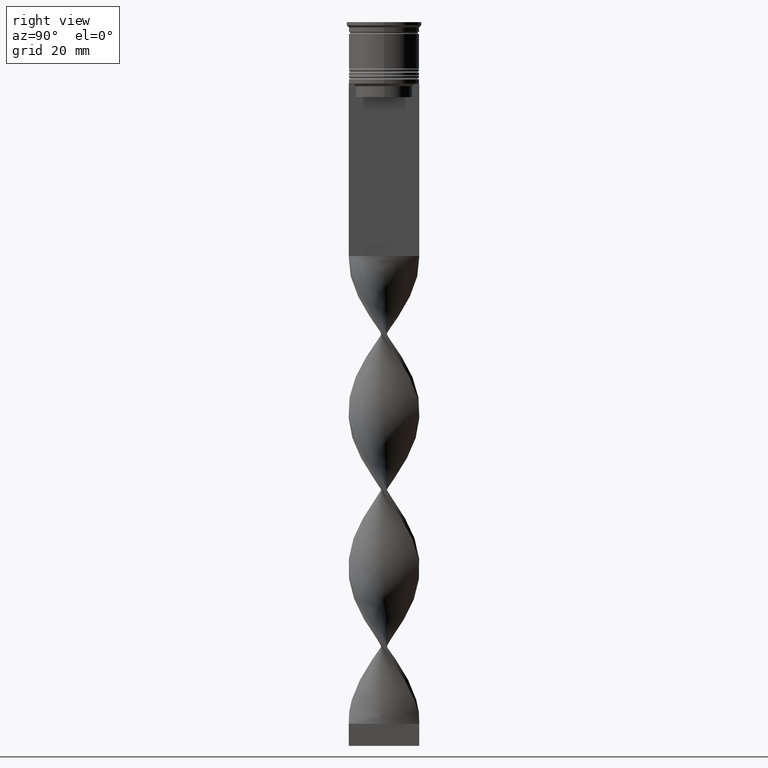
[diagram: clean part render]
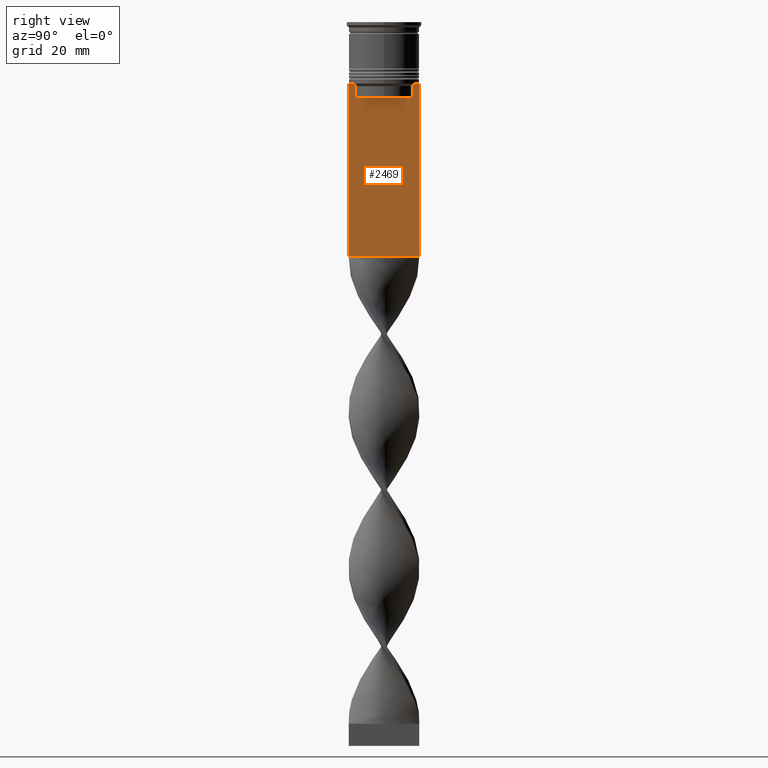
[diagram: same view with one face highlighted and labeled with its STEP entity id]
A machine part, right view. The second image highlights one B-rep face of the part: STEP entity #2469.
In plain terms, the highlighted planar face has unit normal (-1, 0, 0).
Its self-contained STEP definition (entity closure, byte-faithful):
#8 = VECTOR ( 'NONE', #3688, 1000.000000000000000 ) ;
#19 = CARTESIAN_POINT ( 'NONE',  ( 0.5000000000000001110, -6.380438856379708312, 0.000000000000000000 ) ) ;
#35 = DIRECTION ( 'NONE',  ( -0.000000000000000000, -0.000000000000000000, 1.000000000000000000 ) ) ;
#51 = LINE ( 'NONE', #19, #1778 ) ;
#81 = DIRECTION ( 'NONE',  ( 0.000000000000000000, 0.000000000000000000, -1.000000000000000000 ) ) ;
#95 = CARTESIAN_POINT ( 'NONE',  ( 0.5000000000000001110, 6.881860213634098500, -14.00000000000000178 ) ) ;
#165 = VERTEX_POINT ( 'NONE', #2561 ) ;
#213 = VERTEX_POINT ( 'NONE', #2616 ) ;
#249 = VECTOR ( 'NONE', #2120, 1000.000000000000000 ) ;
#254 = CARTESIAN_POINT ( 'NONE',  ( 0.5000000000000001110, -8.000000000000003553, -14.00000000000000178 ) ) ;
#255 = VERTEX_POINT ( 'NONE', #1809 ) ;
#282 = DIRECTION ( 'NONE',  ( 0.000000000000000000, -1.000000000000000000, 0.000000000000000000 ) ) ;
#300 = ORIENTED_EDGE ( 'NONE', *, *, #3386, .T. ) ;
#319 = AXIS2_PLACEMENT_3D ( 'NONE', #1945, #3411, #3087 ) ;
#363 = CARTESIAN_POINT ( 'NONE',  ( 0.5000000000000001110, 6.380438856379708312, 0.000000000000000000 ) ) ;
#388 = CARTESIAN_POINT ( 'NONE',  ( 0.5000000000000001110, 6.380438856379708312, -17.00000000000000000 ) ) ;
#403 = VERTEX_POINT ( 'NONE', #3066 ) ;
#413 = CARTESIAN_POINT ( 'NONE',  ( 0.5000000000000001110, -8.000000000000003553, -14.00000000000000178 ) ) ;
#459 = VERTEX_POINT ( 'NONE', #388 ) ;
#533 = EDGE_CURVE ( 'NONE', #459, #403, #2735, .T. ) ;
#573 = CARTESIAN_POINT ( 'NONE',  ( 0.5000000000000001110, 6.714736947114692711, -14.16668390704818847 ) ) ;
#584 = VERTEX_POINT ( 'NONE', #1043 ) ;
#617 = VECTOR ( 'NONE', #282, 1000.000000000000000 ) ;
#764 = LINE ( 'NONE', #1947, #8 ) ;
#780 = CARTESIAN_POINT ( 'NONE',  ( 0.5000000000000001110, 7.999999999999996447, -53.00000000000000000 ) ) ;
#802 = VECTOR ( 'NONE', #81, 1000.000000000000000 ) ;
#857 = CARTESIAN_POINT ( 'NONE',  ( 0.5000000000000001110, 6.380438856379708312, -14.50000000000000000 ) ) ;
#864 = EDGE_CURVE ( 'NONE', #1900, #2410, #2604, .T. ) ;
#868 = CARTESIAN_POINT ( 'NONE',  ( 0.5000000000000001110, 7.999999999999996447, 2.031219541881394530 ) ) ;
#961 = LINE ( 'NONE', #1503, #249 ) ;
#1002 = CARTESIAN_POINT ( 'NONE',  ( 0.5000000000000001110, -6.714736947305993908, -14.16668390685738821 ) ) ;
#1041 = B_SPLINE_CURVE_WITH_KNOTS ( 'NONE', 3,
 ( #2960, #1817, #1002, #2425 ),
 .UNSPECIFIED., .F., .F.,
 ( 4, 4 ),
 ( 0.02996184199614751464, 0.03067452609193705923 ),
 .UNSPECIFIED. ) ;
#1043 = CARTESIAN_POINT ( 'NONE',  ( 0.5000000000000001110, 7.884161337770806632, -14.00000000000000178 ) ) ;
#1065 = ORIENTED_EDGE ( 'NONE', *, *, #3381, .T. ) ;
#1116 = EDGE_CURVE ( 'NONE', #1900, #584, #961, .T. ) ;
#1158 = CARTESIAN_POINT ( 'NONE',  ( 0.5000000000000001110, 6.881860213634098500, -14.00000000000000178 ) ) ;
#1288 = ORIENTED_EDGE ( 'NONE', *, *, #864, .F. ) ;
#1310 = EDGE_CURVE ( 'NONE', #1492, #2410, #764, .T. ) ;
#1464 = CARTESIAN_POINT ( 'NONE',  ( 0.5000000000000001110, -6.881860213634098500, -14.00000000000000178 ) ) ;
#1487 = DIRECTION ( 'NONE',  ( 0.000000000000000000, 0.000000000000000000, -1.000000000000000000 ) ) ;
#1492 = VERTEX_POINT ( 'NONE', #2621 ) ;
#1503 = CARTESIAN_POINT ( 'NONE',  ( 0.5000000000000001110, -8.000000000000003553, -14.00000000000000178 ) ) ;
#1513 = ORIENTED_EDGE ( 'NONE', *, *, #2557, .T. ) ;
#1685 = CARTESIAN_POINT ( 'NONE',  ( 0.5000000000000001110, -8.000000000000003553, -14.00000000000000178 ) ) ;
#1720 = DIRECTION ( 'NONE',  ( 0.000000000000000000, 0.000000000000000000, -1.000000000000000000 ) ) ;
#1729 = DIRECTION ( 'NONE',  ( 0.000000000000000000, -1.000000000000000000, 0.000000000000000000 ) ) ;
#1737 = CARTESIAN_POINT ( 'NONE',  ( 0.5000000000000001110, -8.000000000000003553, 2.031219541881394530 ) ) ;
#1778 = VECTOR ( 'NONE', #35, 1000.000000000000000 ) ;
#1809 = CARTESIAN_POINT ( 'NONE',  ( 0.5000000000000001110, 6.380438856379708312, -14.50000000000000000 ) ) ;
#1817 = CARTESIAN_POINT ( 'NONE',  ( 0.5000000000000001110, -6.547597841511247019, -14.33335192438652150 ) ) ;
#1885 = CARTESIAN_POINT ( 'NONE',  ( 0.5000000000000001110, 6.399999999999999467, -17.00000000000000000 ) ) ;
#1888 = ORIENTED_EDGE ( 'NONE', *, *, #1310, .T. ) ;
#1898 = VECTOR ( 'NONE', #3270, 1000.000000000000000 ) ;
#1899 = VECTOR ( 'NONE', #1720, 1000.000000000000000 ) ;
#1900 = VERTEX_POINT ( 'NONE', #3685 ) ;
#1928 = FACE_OUTER_BOUND ( 'NONE', #3136, .T. ) ;
#1929 = VERTEX_POINT ( 'NONE', #1685 ) ;
#1945 = CARTESIAN_POINT ( 'NONE',  ( 0.5000000000000001110, -8.000000000000003553, 2.031219541881394530 ) ) ;
#1947 = CARTESIAN_POINT ( 'NONE',  ( 0.5000000000000001110, -8.000000000000003553, -53.00000000000000000 ) ) ;
#1983 = EDGE_CURVE ( 'NONE', #213, #1929, #3004, .T. ) ;
#2059 = LINE ( 'NONE', #2345, #617 ) ;
#2120 = DIRECTION ( 'NONE',  ( 0.000000000000000000, -1.000000000000000000, 0.000000000000000000 ) ) ;
#2124 = ORIENTED_EDGE ( 'NONE', *, *, #2627, .T. ) ;
#2209 = PLANE ( 'NONE',  #319 ) ;
#2262 = VECTOR ( 'NONE', #1487, 1000.000000000000000 ) ;
#2293 = LINE ( 'NONE', #1737, #2262 ) ;
#2345 = CARTESIAN_POINT ( 'NONE',  ( 0.5000000000000001110, -8.000000000000003553, -14.00000000000000178 ) ) ;
#2356 = ORIENTED_EDGE ( 'NONE', *, *, #3014, .T. ) ;
#2377 = ORIENTED_EDGE ( 'NONE', *, *, #1116, .T. ) ;
#2410 = VERTEX_POINT ( 'NONE', #780 ) ;
#2425 = CARTESIAN_POINT ( 'NONE',  ( 0.5000000000000001110, -6.881860213634098500, -14.00000000000000178 ) ) ;
#2469 = ADVANCED_FACE ( 'NONE', ( #1928 ), #2209, .F. ) ;
#2557 = EDGE_CURVE ( 'NONE', #2615, #213, #3669, .T. ) ;
#2561 = CARTESIAN_POINT ( 'NONE',  ( 0.5000000000000001110, -6.380438856379708312, -14.50000000000000000 ) ) ;
#2604 = LINE ( 'NONE', #868, #1899 ) ;
#2615 = VERTEX_POINT ( 'NONE', #1464 ) ;
#2616 = CARTESIAN_POINT ( 'NONE',  ( 0.5000000000000001110, -7.884161337770806632, -14.00000000000000178 ) ) ;
#2621 = CARTESIAN_POINT ( 'NONE',  ( 0.5000000000000001110, -8.000000000000003553, -53.00000000000000000 ) ) ;
#2627 = EDGE_CURVE ( 'NONE', #3649, #255, #2722, .T. ) ;
#2722 = B_SPLINE_CURVE_WITH_KNOTS ( 'NONE', 3,
 ( #1158, #573, #3205, #857 ),
 .UNSPECIFIED., .F., .F.,
 ( 4, 4 ),
 ( 0.01172465562756038263, 0.01243276816391822651 ),
 .UNSPECIFIED. ) ;
#2735 = LINE ( 'NONE', #1885, #3523 ) ;
#2906 = ORIENTED_EDGE ( 'NONE', *, *, #533, .T. ) ;
#2950 = LINE ( 'NONE', #363, #802 ) ;
#2960 = CARTESIAN_POINT ( 'NONE',  ( 0.5000000000000001110, -6.380438856379708312, -14.50000000000000000 ) ) ;
#2962 = EDGE_CURVE ( 'NONE', #255, #459, #2950, .T. ) ;
#3004 = LINE ( 'NONE', #413, #1898 ) ;
#3014 = EDGE_CURVE ( 'NONE', #584, #3649, #2059, .T. ) ;
#3052 = VECTOR ( 'NONE', #1729, 1000.000000000000000 ) ;
#3066 = CARTESIAN_POINT ( 'NONE',  ( 0.5000000000000001110, -6.380438856379708312, -17.00000000000000000 ) ) ;
#3087 = DIRECTION ( 'NONE',  ( 0.000000000000000000, 0.000000000000000000, 1.000000000000000000 ) ) ;
#3136 = EDGE_LOOP ( 'NONE', ( #2356, #2124, #3155, #2906, #1065, #3235, #1513, #3637, #300, #1888, #1288, #2377 ) ) ;
#3155 = ORIENTED_EDGE ( 'NONE', *, *, #2962, .T. ) ;
#3205 = CARTESIAN_POINT ( 'NONE',  ( 0.5000000000000001110, 6.547597841304911626, -14.33335192459222718 ) ) ;
#3235 = ORIENTED_EDGE ( 'NONE', *, *, #3588, .T. ) ;
#3270 = DIRECTION ( 'NONE',  ( 0.000000000000000000, -1.000000000000000000, 0.000000000000000000 ) ) ;
#3381 = EDGE_CURVE ( 'NONE', #403, #165, #51, .T. ) ;
#3386 = EDGE_CURVE ( 'NONE', #1929, #1492, #2293, .T. ) ;
#3411 = DIRECTION ( 'NONE',  ( -1.000000000000000000, 0.000000000000000000, 0.000000000000000000 ) ) ;
#3523 = VECTOR ( 'NONE', #3578, 1000.000000000000000 ) ;
#3578 = DIRECTION ( 'NONE',  ( 0.000000000000000000, -1.000000000000000000, 0.000000000000000000 ) ) ;
#3588 = EDGE_CURVE ( 'NONE', #165, #2615, #1041, .T. ) ;
#3637 = ORIENTED_EDGE ( 'NONE', *, *, #1983, .T. ) ;
#3649 = VERTEX_POINT ( 'NONE', #95 ) ;
#3669 = LINE ( 'NONE', #254, #3052 ) ;
#3685 = CARTESIAN_POINT ( 'NONE',  ( 0.5000000000000001110, 7.999999999999996447, -14.00000000000000178 ) ) ;
#3688 = DIRECTION ( 'NONE',  ( 0.000000000000000000, 1.000000000000000000, 0.000000000000000000 ) ) ;